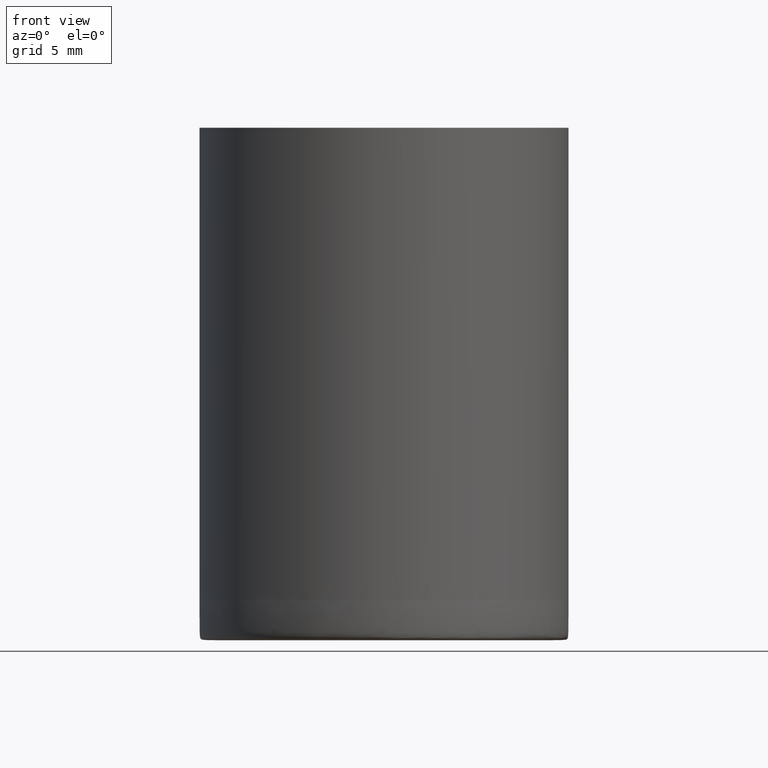
[diagram: clean part render]
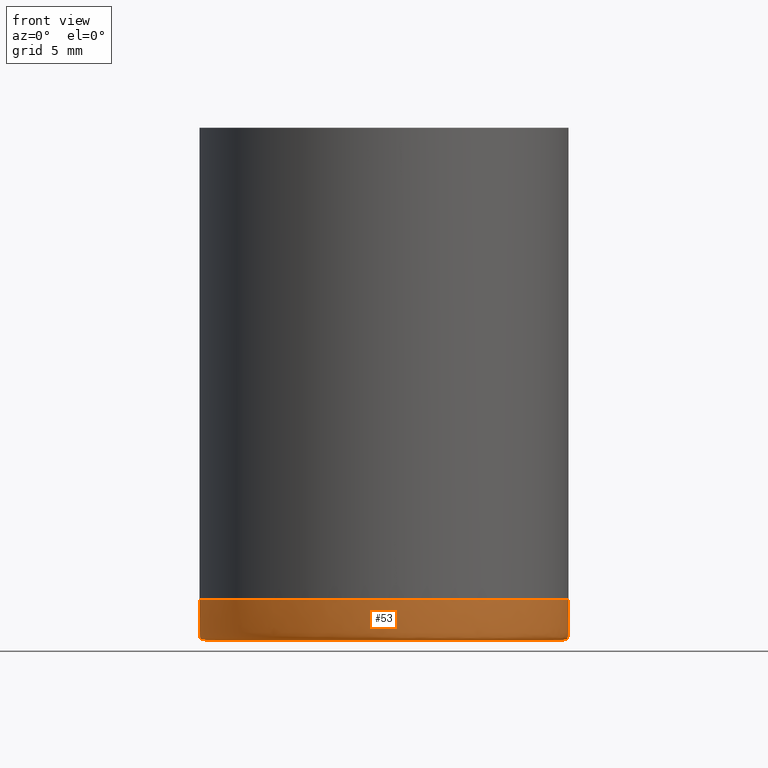
[diagram: same view with one face highlighted and labeled with its STEP entity id]
A machine part, front view. The second image highlights one B-rep face of the part: STEP entity #53.
In plain terms, the highlighted face is a freeform B-spline surface patch.
Its self-contained STEP definition (entity closure, byte-faithful):
#1 = CARTESIAN_POINT ( 'NONE',  ( 2.355730962935730600, 8.765754088481333600, 2.000000000000001800 ) ) ;
#2 = CARTESIAN_POINT ( 'NONE',  ( 8.765754088481321200, 2.355730962935762600, 2.000000000000001800 ) ) ;
#6 = CARTESIAN_POINT ( 'NONE',  ( 4.532570819635861200, -7.864077496722286400, -3.956461275332821500E-013 ) ) ;
#9 = CARTESIAN_POINT ( 'NONE',  ( -2.355730962935641800, 8.765754088481578800, 1.734723475976807300E-015 ) ) ;
#11 = CARTESIAN_POINT ( 'NONE',  ( 7.864077496721888500, -4.532570819635727100, 2.000000000000001800 ) ) ;
#13 = CARTESIAN_POINT ( 'NONE',  ( -0.9162978541803630300, 6.999999999999999100, 1.734723475976807100E-015 ) ) ;
#16 = CARTESIAN_POINT ( 'NONE',  ( -3.525332859716778800, -6.116504719672661000, 1.734723475976807100E-015 ) ) ;
#29 = EDGE_CURVE ( 'NONE', #332, #120, #582, .T. ) ;
#36 = CARTESIAN_POINT ( 'NONE',  ( -9.000000000000000000, 1.103971260012029000E-015, 1.734723475976807300E-015 ) ) ;
#37 = CARTESIAN_POINT ( 'NONE',  ( 6.954909725996230900, -0.9137101841437300600, 0.0000000000000000000 ) ) ;
#40 = CARTESIAN_POINT ( 'NONE',  ( -6.999999999999999100, 8.673617379884035500E-016, 8.673617379884035500E-016 ) ) ;
#41 = CARTESIAN_POINT ( 'NONE',  ( 4.626093170439671300, -5.273456898053740200, -0.0000000000000000000 ) ) ;
#44 = CARTESIAN_POINT ( 'NONE',  ( 1.178097241089039600, 9.000000000000000000, 2.000000000000001800 ) ) ;
#47 = EDGE_LOOP ( 'NONE', ( #305, #206, #569, #600 ) ) ;
#48 = CARTESIAN_POINT ( 'NONE',  ( 9.000000000000000000, 0.0000000000000000000, 1.734723475976807300E-015 ) ) ;
#51 = CARTESIAN_POINT ( 'NONE',  ( -6.291945348562289400, -3.101679843626973000, 0.0000000000000000000 ) ) ;
#53 = ADVANCED_FACE ( 'NONE', ( #517 ), #449, .T. ) ;
#56 = CARTESIAN_POINT ( 'NONE',  ( 5.530920482607561100, -7.197001578749894400, 1.734723475976806900E-015 ) ) ;
#57 = CARTESIAN_POINT ( 'NONE',  ( 6.999999999999999100, 0.0000000000000000000, 8.673617379884035500E-016 ) ) ;
#58 = CARTESIAN_POINT ( 'NONE',  ( 1.178097241089039600, 8.999999999999998200, 1.734723475976807300E-015 ) ) ;
#60 = CARTESIAN_POINT ( 'NONE',  ( -7.864077496720089000, -4.532570819636464200, -3.956461275345179200E-013 ) ) ;
#70 = CARTESIAN_POINT ( 'NONE',  ( 6.817808735485742000, -1.832235193394495600, 1.734723475976807100E-015 ) ) ;
#81 = CARTESIAN_POINT ( 'NONE',  ( 6.075836996854586200, -3.505686863512972500, 0.0000000000000000000 ) ) ;
#82 = CARTESIAN_POINT ( 'NONE',  ( 9.000000000000000000, 5.510910596163088600E-016, 2.000000000000001800 ) ) ;
#87 = CARTESIAN_POINT ( 'NONE',  ( -9.000000000000000000, 1.178097241089039800, 2.000000000000001800 ) ) ;
#88 = CARTESIAN_POINT ( 'NONE',  ( -1.178097245096173100, -9.000000000000000000, 2.000000000000001800 ) ) ;
#89 = CARTESIAN_POINT ( 'NONE',  ( -7.197001578750478000, -5.530920482607379000, 2.000000000000001800 ) ) ;
#90 = CARTESIAN_POINT ( 'NONE',  ( -4.532570823338096100, -7.864077495188321400, 2.000000000000001800 ) ) ;
#94 = CARTESIAN_POINT ( 'NONE',  ( 7.197001578749834000, 5.530920482608019400, 2.000000000000001800 ) ) ;
#95 = CARTESIAN_POINT ( 'NONE',  ( -1.832235193394365500, 6.817808735485495000, 1.734723475976807100E-015 ) ) ;
#98 = CARTESIAN_POINT ( 'NONE',  ( 7.197001578750258600, -5.530920482607994500, 1.734723475976806900E-015 ) ) ;
#102 = CARTESIAN_POINT ( 'NONE',  ( 9.000000000000000000, 0.0000000000000000000, 2.000000000000001800 ) ) ;
#104 = CARTESIAN_POINT ( 'NONE',  ( 6.999999999999999100, 0.9162978541821159600, 1.734723475976807100E-015 ) ) ;
#105 = CARTESIAN_POINT ( 'NONE',  ( -1.178097241089025800, -9.000000000000001800, 2.000000000000001800 ) ) ;
#120 = VERTEX_POINT ( 'NONE', #136 ) ;
#122 = VERTEX_POINT ( 'NONE', #82 ) ;
#128 = CARTESIAN_POINT ( 'NONE',  ( 1.817370587955756200, -6.775160495766284500, 0.0000000000000000000 ) ) ;
#131 = CARTESIAN_POINT ( 'NONE',  ( 4.271773162550204900, -5.563954497036533600, 0.0000000000000000000 ) ) ;
#135 = CARTESIAN_POINT ( 'NONE',  ( 6.642296073321877400, -2.255858372325521900, 0.0000000000000000000 ) ) ;
#136 = CARTESIAN_POINT ( 'NONE',  ( -6.999999999999999100, 8.673617379884035500E-016, 8.673617379884035500E-016 ) ) ;
#137 = CARTESIAN_POINT ( 'NONE',  ( 7.197001581583623200, -5.530920479774233700, 2.000000000000002200 ) ) ;
#138 = CARTESIAN_POINT ( 'NONE',  ( -8.765754088481543200, -2.355730962935216300, 2.000000000000001800 ) ) ;
#140 = CARTESIAN_POINT ( 'NONE',  ( 9.000000000000000000, -1.178097245096174200, 2.000000000000001800 ) ) ;
#142 = CARTESIAN_POINT ( 'NONE',  ( 4.532570819635877200, 7.864077496721830800, 2.000000000000001800 ) ) ;
#144 = CARTESIAN_POINT ( 'NONE',  ( -5.273456898050898900, -4.626093170442176800, -0.0000000000000000000 ) ) ;
#145 = CARTESIAN_POINT ( 'NONE',  ( -1.178097241089038200, 9.000000000000000000, 2.000000000000001800 ) ) ;
#147 = CARTESIAN_POINT ( 'NONE',  ( 8.765754088480871800, -2.355730962935751900, 1.734723475976807300E-015 ) ) ;
#149 = CARTESIAN_POINT ( 'NONE',  ( 6.817808735485234800, 1.832235193394431600, 1.734723475976807100E-015 ) ) ;
#152 = CARTESIAN_POINT ( 'NONE',  ( 4.532570819635577800, 7.864077496722377000, 7.964964254957309400E-013 ) ) ;
#153 = CARTESIAN_POINT ( 'NONE',  ( 8.765754088481260800, -2.355730962935912200, 2.000000000000001800 ) ) ;
#156 = CARTESIAN_POINT ( 'NONE',  ( -7.864077496721667300, 4.532570819636290200, 1.734723475976807300E-015 ) ) ;
#158 = EDGE_CURVE ( 'NONE', #455, #120, #372, .T. ) ;
#173 = CARTESIAN_POINT ( 'NONE',  ( 6.999999999999999100, 0.0000000000000000000, 8.673617379884035500E-016 ) ) ;
#176 = CARTESIAN_POINT ( 'NONE',  ( 0.4577552816897402200, -6.999961015872926900, 0.0000000000000000000 ) ) ;
#180 = CARTESIAN_POINT ( 'NONE',  ( -8.765754090014841200, -2.355730959233521800, 2.000000000000002200 ) ) ;
#182 = CARTESIAN_POINT ( 'NONE',  ( 7.000000000000000900, -0.4579513537572051900, -0.0000000000000000000 ) ) ;
#186 = CARTESIAN_POINT ( 'NONE',  ( 9.000000000000000000, 1.178097241091291800, 2.000000000000001800 ) ) ;
#192 = CARTESIAN_POINT ( 'NONE',  ( -8.765754088481420700, 2.355730962935523200, 2.000000000000001800 ) ) ;
#196 = CARTESIAN_POINT ( 'NONE',  ( -9.000000000000000000, 5.421010862427522200E-016, 2.000000000000001800 ) ) ;
#199 = CARTESIAN_POINT ( 'NONE',  ( 8.999999999999998200, 0.0000000000000000000, 1.734723475976807300E-015 ) ) ;
#201 = CARTESIAN_POINT ( 'NONE',  ( 5.597667894583292300, 4.301827042028371300, 1.734723475976807100E-015 ) ) ;
#202 = CARTESIAN_POINT ( 'NONE',  ( -4.532570819635886000, -7.864077496722276600, 1.734723475976807300E-015 ) ) ;
#204 = CARTESIAN_POINT ( 'NONE',  ( 6.116504719672263900, -3.525332859716779700, 1.734723475976807100E-015 ) ) ;
#206 = ORIENTED_EDGE ( 'NONE', *, *, #158, .T. ) ;
#210 = CARTESIAN_POINT ( 'NONE',  ( -6.999999999999999100, 0.9162978541803642500, 1.734723475976807100E-015 ) ) ;
#225 = CARTESIAN_POINT ( 'NONE',  ( -0.4577552816897177400, -7.000038984127072300, -0.0000000000000000000 ) ) ;
#230 = CARTESIAN_POINT ( 'NONE',  ( 5.273401766171966500, -4.626038038557955400, 0.0000000000000000000 ) ) ;
#232 = CARTESIAN_POINT ( 'NONE',  ( 9.000000000000000000, 5.510910596163088600E-016, 2.000000000000001800 ) ) ;
#233 = CARTESIAN_POINT ( 'NONE',  ( -2.355730959233523200, -8.765754090014834100, 2.000000000000001300 ) ) ;
#238 = CARTESIAN_POINT ( 'NONE',  ( -6.075901012624056500, -3.505729637479546600, -0.0000000000000000000 ) ) ;
#244 = CARTESIAN_POINT ( 'NONE',  ( -5.530920482607776900, 7.197001578750081000, 2.000000000000001800 ) ) ;
#245 = CARTESIAN_POINT ( 'NONE',  ( 8.765754088480962400, 2.355730962935613300, 1.734723475976806900E-015 ) ) ;
#247 = CARTESIAN_POINT ( 'NONE',  ( 5.530920482608021200, 7.197001578749834000, 1.734723475976807300E-015 ) ) ;
#249 = CARTESIAN_POINT ( 'NONE',  ( -8.765754088481482900, 2.355730962935348200, 1.734723475976807300E-015 ) ) ;
#250 = CARTESIAN_POINT ( 'NONE',  ( 3.525332859716890700, 6.116504719672518900, 1.734723475976807100E-015 ) ) ;
#251 = CARTESIAN_POINT ( 'NONE',  ( 2.355730962936054300, -8.765754088481196900, 2.000000000000001800 ) ) ;
#255 = CARTESIAN_POINT ( 'NONE',  ( 0.9162978541803755700, -6.999999999999999100, 1.734723475976807100E-015 ) ) ;
#257 = CARTESIAN_POINT ( 'NONE',  ( -1.832235193394495100, -6.817808735485344100, 1.734723475976807100E-015 ) ) ;
#267 = B_SPLINE_CURVE_WITH_KNOTS ( 'NONE', 3,
 ( #412, #529, #180, #468, #527, #562, #90, #233, #88, #568, #410, #283, #611, #137, #608, #417, #140, #327 ),
 .UNSPECIFIED., .F., .F.,
 ( 4, 2, 2, 2, 2, 2, 2, 2, 4 ),
 ( 0.5000000000000000000, 0.5625000000000000000, 0.6249999999999998900, 0.6874999999999998900, 0.7499999999999998900, 0.8124999999999998900, 0.8749999999999998900, 0.9375000000000000000, 1.000000000000000000 ),
 .UNSPECIFIED. ) ;
#268 = CARTESIAN_POINT ( 'NONE',  ( -9.000000000000000000, 5.421010862427522200E-016, 2.000000000000001800 ) ) ;
#274 = CARTESIAN_POINT ( 'NONE',  ( 6.775236007512823700, -1.817385608177638700, -0.0000000000000000000 ) ) ;
#280 = CARTESIAN_POINT ( 'NONE',  ( 9.000000000000000000, 0.0000000000000000000, 2.000000000000001800 ) ) ;
#282 = CARTESIAN_POINT ( 'NONE',  ( -4.532570819636053000, 7.864077496721756200, 2.000000000000001800 ) ) ;
#283 = CARTESIAN_POINT ( 'NONE',  ( 4.532570823338094400, -7.864077495188321400, 2.000000000000001800 ) ) ;
#284 = CARTESIAN_POINT ( 'NONE',  ( -6.642368106595730700, -2.255888209484264700, -0.0000000000000000000 ) ) ;
#287 = CARTESIAN_POINT ( 'NONE',  ( -8.765754088483079800, -2.355730962935127100, 3.991155744864715300E-013 ) ) ;
#289 = CARTESIAN_POINT ( 'NONE',  ( -4.532570819635982900, 7.864077496721582100, 1.734723475976807300E-015 ) ) ;
#290 = CARTESIAN_POINT ( 'NONE',  ( 2.355730962936031200, 8.765754088480790100, -7.930269785437773300E-013 ) ) ;
#292 = CARTESIAN_POINT ( 'NONE',  ( 8.999999999999998200, 0.0000000000000000000, 1.734723475976807300E-015 ) ) ;
#294 = CARTESIAN_POINT ( 'NONE',  ( 0.9162978541803639100, 6.999999999999999100, 1.734723475976807100E-015 ) ) ;
#295 = CARTESIAN_POINT ( 'NONE',  ( -4.301827042027866800, -5.597667894583798500, 1.734723475976807100E-015 ) ) ;
#296 = CARTESIAN_POINT ( 'NONE',  ( -0.9162978541803532600, -6.999999999999999100, 1.734723475976807100E-015 ) ) ;
#303 = CARTESIAN_POINT ( 'NONE',  ( 5.597667894583356200, -4.301827042028308200, 1.734723475976807100E-015 ) ) ;
#305 = ORIENTED_EDGE ( 'NONE', *, *, #349, .F. ) ;
#312 = CARTESIAN_POINT ( 'NONE',  ( 6.292017381836125800, -3.101709680785753600, -0.0000000000000000000 ) ) ;
#324 = CARTESIAN_POINT ( 'NONE',  ( -7.864077496721726800, 4.532570819636115200, 2.000000000000001800 ) ) ;
#326 = CARTESIAN_POINT ( 'NONE',  ( -2.255858372327477700, -6.642296073320660600, 0.0000000000000000000 ) ) ;
#327 = CARTESIAN_POINT ( 'NONE',  ( 9.000000000000000000, 5.510910596163088600E-016, 2.000000000000001800 ) ) ;
#332 = VERTEX_POINT ( 'NONE', #419 ) ;
#333 = CARTESIAN_POINT ( 'NONE',  ( 5.530920482608021200, 7.197001578749832300, 2.000000000000001800 ) ) ;
#334 = CARTESIAN_POINT ( 'NONE',  ( 2.355730962935725700, -8.765754088480882400, 3.991155744852366200E-013 ) ) ;
#336 = CARTESIAN_POINT ( 'NONE',  ( 7.864077496722201100, 4.532570819636004200, 1.734723475976806900E-015 ) ) ;
#338 = CARTESIAN_POINT ( 'NONE',  ( -2.355730962935751500, -8.765754088480871800, 1.734723475976807300E-015 ) ) ;
#341 = CARTESIAN_POINT ( 'NONE',  ( -1.178097241089026200, -8.999999999999998200, 1.734723475976806900E-015 ) ) ;
#342 = CARTESIAN_POINT ( 'NONE',  ( -8.999999999999998200, 1.178097241089039800, 1.734723475976807300E-015 ) ) ;
#349 = EDGE_CURVE ( 'NONE', #455, #122, #267, .T. ) ;
#368 = CARTESIAN_POINT ( 'NONE',  ( 3.505729637473928900, -6.075901012626725400, -0.0000000000000000000 ) ) ;
#372 =( BOUNDED_CURVE ( )  B_SPLINE_CURVE ( 2, ( #268, #36, #40 ),
 .UNSPECIFIED., .F., .F. ) 
 B_SPLINE_CURVE_WITH_KNOTS ( ( 3, 3 ),
 ( 0.0000000000000000000, 1.000000000000000000 ),
 .UNSPECIFIED. ) 
 CURVE ( )  GEOMETRIC_REPRESENTATION_ITEM ( )  RATIONAL_B_SPLINE_CURVE ( ( 1.000000000000000000, 14.14213562373095100, 1.000000000000000000 ) ) 
 REPRESENTATION_ITEM ( '' )  );
#375 = CARTESIAN_POINT ( 'NONE',  ( -6.999961015872928600, -0.4577552816867001000, -0.0000000000000000000 ) ) ;
#377 = CARTESIAN_POINT ( 'NONE',  ( 4.301827042028372200, 5.597667894583291400, 1.734723475976807100E-015 ) ) ;
#379 = CARTESIAN_POINT ( 'NONE',  ( 8.999999999999998200, 1.178097241091292000, 1.734723475976807300E-015 ) ) ;
#381 = CARTESIAN_POINT ( 'NONE',  ( 1.178097241089054200, -8.999999999999998200, 1.734723475976806900E-015 ) ) ;
#384 = CARTESIAN_POINT ( 'NONE',  ( 7.864077496722276600, -4.532570819635886900, 1.734723475976807300E-015 ) ) ;
#392 = CARTESIAN_POINT ( 'NONE',  ( 3.525332859716758800, -6.116504719672669000, 1.734723475976807100E-015 ) ) ;
#402 = CARTESIAN_POINT ( 'NONE',  ( 3.101679843628292400, -6.291945348562080700, 0.0000000000000000000 ) ) ;
#405 = CARTESIAN_POINT ( 'NONE',  ( 2.255888209482943600, -6.642368106595939500, -0.0000000000000000000 ) ) ;
#410 = CARTESIAN_POINT ( 'NONE',  ( 2.355730959233521800, -8.765754090014839400, 2.000000000000001800 ) ) ;
#412 = CARTESIAN_POINT ( 'NONE',  ( -9.000000000000000000, 5.421010862427522200E-016, 2.000000000000001800 ) ) ;
#413 = CARTESIAN_POINT ( 'NONE',  ( -9.000000000000000000, -1.178097241089037600, 2.000000000000001800 ) ) ;
#415 = CARTESIAN_POINT ( 'NONE',  ( -5.530920482607371000, -7.197001578750484200, 2.000000000000001800 ) ) ;
#417 = CARTESIAN_POINT ( 'NONE',  ( 8.765754090014835900, -2.355730959233524900, 2.000000000000001300 ) ) ;
#419 = CARTESIAN_POINT ( 'NONE',  ( 6.999999999999999100, 0.0000000000000000000, 8.673617379884035500E-016 ) ) ;
#420 = CARTESIAN_POINT ( 'NONE',  ( -6.954985237742518800, -0.9137252043647169400, -0.0000000000000000000 ) ) ;
#424 = CARTESIAN_POINT ( 'NONE',  ( -3.101709680783797400, -6.292017381837343500, -0.0000000000000000000 ) ) ;
#426 = CARTESIAN_POINT ( 'NONE',  ( -3.525332859716895600, 6.116504719672516200, 1.734723475976807100E-015 ) ) ;
#428 = CARTESIAN_POINT ( 'NONE',  ( 6.999999999999999100, 0.0000000000000000000, 1.734723475976807100E-015 ) ) ;
#429 = CARTESIAN_POINT ( 'NONE',  ( 1.178097241089054400, -8.999999999999998200, 2.000000000000001800 ) ) ;
#433 = CARTESIAN_POINT ( 'NONE',  ( -7.197001578750088100, 5.530920482607769800, 1.734723475976806900E-015 ) ) ;
#435 = CARTESIAN_POINT ( 'NONE',  ( -1.178097241089038200, 8.999999999999998200, 1.734723475976807300E-015 ) ) ;
#437 = CARTESIAN_POINT ( 'NONE',  ( -5.597667894583401500, 4.301827042028262900, 1.734723475976807100E-015 ) ) ;
#442 = CARTESIAN_POINT ( 'NONE',  ( -5.597667894583792300, -4.301827042027873000, 1.734723475976807100E-015 ) ) ;
#448 = EDGE_CURVE ( 'NONE', #122, #332, #541, .T. ) ;
#449 =( BOUNDED_SURFACE ( )  B_SPLINE_SURFACE ( 2, 3, ( 
 ( #280, #186, #2, #528, #94, #333, #142, #1, #44, #145, #567, #282, #244, #612, #324, #192, #87, #413, #138, #469, #89, #415, #471, #525, #105, #429, #251, #488, #540, #575, #11, #153, #489, #102 ),
 ( #199, #379, #245, #336, #535, #247, #152, #290, #58, #435, #9, #289, #536, #433, #156, #249, #342, #537, #287, #60, #490, #534, #202, #338, #341, #381, #334, #6, #56, #98, #384, #147, #578, #292 ),
 ( #428, #104, #149, #486, #201, #377, #250, #580, #294, #13, #95, #426, #482, #437, #498, #547, #210, #504, #495, #550, #442, #295, #16, #257, #296, #255, #549, #392, #584, #303, #204, #70, #585, #542 ) ),
 .UNSPECIFIED., .F., .T., .T. ) 
 B_SPLINE_SURFACE_WITH_KNOTS ( ( 3, 3 ),
 ( 4, 2, 2, 2, 2, 2, 2, 2, 2, 2, 2, 2, 2, 2, 2, 2, 4 ),
 ( 0.0000000000000000000, 1.000000000000000000 ),
 ( 0.0000000000000000000, 0.3926990816987241400, 0.7853981633974482800, 1.178097245096172400, 1.570796326794896600, 1.963495408493620700, 2.356194490192344800, 2.748893571891069000, 3.141592653589793100, 3.534291735288517300, 3.926990816987241400, 4.319689898685965100, 4.712388980384689700, 5.105088062083414300, 5.497787143782138000, 5.890486225480861600, 6.283185307179586200 ),
 .UNSPECIFIED. ) 
 GEOMETRIC_REPRESENTATION_ITEM ( )  RATIONAL_B_SPLINE_SURFACE ( (
 ( 1.000000000000000000, 1.000000000000000000, 1.000000000000000000, 1.000000000000000000, 1.000000000000000000, 1.000000000000000000, 1.000000000000000000, 1.000000000000000000, 1.000000000000000000, 1.000000000000000000, 1.000000000000000000, 1.000000000000000000, 1.000000000000000000, 1.000000000000000000, 1.000000000000000000, 1.000000000000000000, 1.000000000000000000, 1.000000000000000000, 1.000000000000000000, 1.000000000000000000, 1.000000000000000000, 1.000000000000000000, 1.000000000000000000, 1.000000000000000000, 1.000000000000000000, 1.000000000000000000, 1.000000000000000000, 1.000000000000000000, 1.000000000000000000, 1.000000000000000000, 1.000000000000000000, 1.000000000000000000, 1.000000000000000000, 1.000000000000000000),
 ( 14.14213562373095100, 14.14213562373095100, 14.14213562373095500, 14.14213562373095500, 14.14213562373095100, 14.14213562373095100, 14.14213562373095500, 14.14213562373095500, 14.14213562373095100, 14.14213562373095100, 14.14213562373094900, 14.14213562373094900, 14.14213562373095500, 14.14213562373095500, 14.14213562373094900, 14.14213562373094900, 14.14213562373095100, 14.14213562373095100, 14.14213562373094600, 14.14213562373094600, 14.14213562373095100, 14.14213562373095100, 14.14213562373094900, 14.14213562373094900, 14.14213562373095500, 14.14213562373095500, 14.14213562373095100, 14.14213562373095100, 14.14213562373095500, 14.14213562373095500, 14.14213562373094900, 14.14213562373094900, 14.14213562373095100, 14.14213562373095100),
 ( 1.000000000000000000, 1.000000000000000000, 1.000000000000000000, 1.000000000000000000, 1.000000000000000000, 1.000000000000000000, 1.000000000000000000, 1.000000000000000000, 1.000000000000000000, 1.000000000000000000, 1.000000000000000000, 1.000000000000000000, 1.000000000000000000, 1.000000000000000000, 1.000000000000000000, 1.000000000000000000, 1.000000000000000000, 1.000000000000000000, 1.000000000000000000, 1.000000000000000000, 1.000000000000000000, 1.000000000000000000, 1.000000000000000000, 1.000000000000000000, 1.000000000000000000, 1.000000000000000000, 1.000000000000000000, 1.000000000000000000, 1.000000000000000000, 1.000000000000000000, 1.000000000000000000, 1.000000000000000000, 1.000000000000000000, 1.000000000000000000) ) ) 
 REPRESENTATION_ITEM ( '' )  SURFACE ( )  );
#455 = VERTEX_POINT ( 'NONE', #196 ) ;
#460 = CARTESIAN_POINT ( 'NONE',  ( 0.9137252043642896100, -6.954985237742483200, -0.0000000000000000000 ) ) ;
#468 = CARTESIAN_POINT ( 'NONE',  ( -7.864077495188323200, -4.532570823338094400, 2.000000000000002200 ) ) ;
#469 = CARTESIAN_POINT ( 'NONE',  ( -7.864077496721624700, -4.532570819636373600, 2.000000000000001800 ) ) ;
#471 = CARTESIAN_POINT ( 'NONE',  ( -4.532570819635557400, -7.864077496721959500, 2.000000000000001800 ) ) ;
#475 = CARTESIAN_POINT ( 'NONE',  ( -4.626038038560762000, -5.273401766169496500, 0.0000000000000000000 ) ) ;
#480 = CARTESIAN_POINT ( 'NONE',  ( -5.563954497039279800, -4.271773162544325200, 0.0000000000000000000 ) ) ;
#482 = CARTESIAN_POINT ( 'NONE',  ( -4.301827042028270000, 5.597667894583395300, 1.734723475976807100E-015 ) ) ;
#486 = CARTESIAN_POINT ( 'NONE',  ( 6.116504719672778200, 3.525332859716825400, 1.734723475976807100E-015 ) ) ;
#488 = CARTESIAN_POINT ( 'NONE',  ( 4.532570819635531700, -7.864077496721972900, 2.000000000000001800 ) ) ;
#489 = CARTESIAN_POINT ( 'NONE',  ( 9.000000000000000000, -1.178097241091293100, 2.000000000000001800 ) ) ;
#490 = CARTESIAN_POINT ( 'NONE',  ( -7.197001578750476200, -5.530920482607379000, 1.734723475976807300E-015 ) ) ;
#495 = CARTESIAN_POINT ( 'NONE',  ( -6.817808735485646900, -1.832235193394427900, 1.734723475976807100E-015 ) ) ;
#498 = CARTESIAN_POINT ( 'NONE',  ( -6.116504719672365200, 3.525332859717026100, 1.734723475976807100E-015 ) ) ;
#504 = CARTESIAN_POINT ( 'NONE',  ( -6.999999999999999100, -0.9162978541803625800, 1.734723475976807100E-015 ) ) ;
#517 = FACE_OUTER_BOUND ( 'NONE', #47, .T. ) ;
#519 = CARTESIAN_POINT ( 'NONE',  ( 5.564018512808338800, -4.271815936511211800, -0.0000000000000000000 ) ) ;
#525 = CARTESIAN_POINT ( 'NONE',  ( -2.355730962936081400, -8.765754088481189800, 2.000000000000001800 ) ) ;
#527 = CARTESIAN_POINT ( 'NONE',  ( -7.197001581583623200, -5.530920479774233700, 2.000000000000002200 ) ) ;
#528 = CARTESIAN_POINT ( 'NONE',  ( 7.864077496721839600, 4.532570819635854100, 2.000000000000001800 ) ) ;
#529 = CARTESIAN_POINT ( 'NONE',  ( -9.000000000000001800, -1.178097245096172600, 2.000000000000001800 ) ) ;
#530 = CARTESIAN_POINT ( 'NONE',  ( -1.817385608177813700, -6.775236007512203800, -0.0000000000000000000 ) ) ;
#534 = CARTESIAN_POINT ( 'NONE',  ( -5.530920482607371000, -7.197001578750484200, 1.734723475976807300E-015 ) ) ;
#535 = CARTESIAN_POINT ( 'NONE',  ( 7.197001578749834000, 5.530920482608020300, 1.734723475976807300E-015 ) ) ;
#536 = CARTESIAN_POINT ( 'NONE',  ( -5.530920482607778700, 7.197001578750079200, 1.734723475976806900E-015 ) ) ;
#537 = CARTESIAN_POINT ( 'NONE',  ( -8.999999999999998200, -1.178097241089037600, 1.734723475976807300E-015 ) ) ;
#540 = CARTESIAN_POINT ( 'NONE',  ( 5.530920482607757400, -7.197001578750090700, 2.000000000000001800 ) ) ;
#541 =( BOUNDED_CURVE ( )  B_SPLINE_CURVE ( 2, ( #232, #48, #57 ),
 .UNSPECIFIED., .F., .T. ) 
 B_SPLINE_CURVE_WITH_KNOTS ( ( 3, 3 ),
 ( 0.0000000000000000000, 1.000000000000000000 ),
 .UNSPECIFIED. ) 
 CURVE ( )  GEOMETRIC_REPRESENTATION_ITEM ( )  RATIONAL_B_SPLINE_CURVE ( ( 1.000000000000000000, 14.14213562373095100, 1.000000000000000000 ) ) 
 REPRESENTATION_ITEM ( '' )  );
#542 = CARTESIAN_POINT ( 'NONE',  ( 6.999999999999999100, 0.0000000000000000000, 1.734723475976807100E-015 ) ) ;
#547 = CARTESIAN_POINT ( 'NONE',  ( -6.817808735485638900, 1.832235193394248700, 1.734723475976807100E-015 ) ) ;
#549 = CARTESIAN_POINT ( 'NONE',  ( 1.832235193394475200, -6.817808735485352000, 1.734723475976807100E-015 ) ) ;
#550 = CARTESIAN_POINT ( 'NONE',  ( -6.116504719672373200, -3.525332859716809000, 1.734723475976807100E-015 ) ) ;
#559 = CARTESIAN_POINT ( 'NONE',  ( -0.9137101841422297100, -6.954909725996553300, 0.0000000000000000000 ) ) ;
#562 = CARTESIAN_POINT ( 'NONE',  ( -5.530920479774233700, -7.197001581583620600, 2.000000000000001300 ) ) ;
#564 = CARTESIAN_POINT ( 'NONE',  ( -6.999999999999999100, 8.673617379884035500E-016, 8.673617379884035500E-016 ) ) ;
#565 = CARTESIAN_POINT ( 'NONE',  ( -3.505686863512764700, -6.075836996854702600, 0.0000000000000000000 ) ) ;
#567 = CARTESIAN_POINT ( 'NONE',  ( -2.355730962935568100, 8.765754088481401100, 2.000000000000001800 ) ) ;
#568 = CARTESIAN_POINT ( 'NONE',  ( 1.178097245096170900, -8.999999999999998200, 2.000000000000001300 ) ) ;
#569 = ORIENTED_EDGE ( 'NONE', *, *, #29, .F. ) ;
#575 = CARTESIAN_POINT ( 'NONE',  ( 7.197001578750059600, -5.530920482607799100, 2.000000000000001800 ) ) ;
#578 = CARTESIAN_POINT ( 'NONE',  ( 8.999999999999998200, -1.178097241091293100, 1.734723475976807300E-015 ) ) ;
#580 = CARTESIAN_POINT ( 'NONE',  ( 1.832235193394360100, 6.817808735485497700, 1.734723475976807100E-015 ) ) ;
#582 = B_SPLINE_CURVE_WITH_KNOTS ( 'NONE', 3,
 ( #173, #182, #37, #274, #135, #312, #81, #519, #230, #41, #131, #368, #402, #405, #128, #460, #176, #225, #559, #530, #326, #424, #565, #610, #475, #144, #480, #238, #51, #284, #609, #420, #375, #564 ),
 .UNSPECIFIED., .F., .F.,
 ( 4, 2, 2, 2, 2, 2, 2, 2, 2, 2, 2, 2, 2, 2, 2, 2, 4 ),
 ( 0.0000000000000000000, 0.03124999999999994400, 0.06249999999999988900, 0.09374999999999983300, 0.1249999999999998100, 0.1562499999999997800, 0.1874999999999997800, 0.2187499999999997800, 0.2499999999999997800, 0.2812499999999997800, 0.3124999999999997800, 0.3437499999999997800, 0.3749999999999997800, 0.4062499999999998300, 0.4374999999999998900, 0.4687499999999999400, 0.5000000000000000000 ),
 .UNSPECIFIED. ) ;
#584 = CARTESIAN_POINT ( 'NONE',  ( 4.301827042028279800, -5.597667894583384700, 1.734723475976807100E-015 ) ) ;
#585 = CARTESIAN_POINT ( 'NONE',  ( 6.999999999999999100, -0.9162978541821169600, 1.734723475976807100E-015 ) ) ;
#600 = ORIENTED_EDGE ( 'NONE', *, *, #448, .F. ) ;
#608 = CARTESIAN_POINT ( 'NONE',  ( 7.864077495188316100, -4.532570823338099700, 2.000000000000001800 ) ) ;
#609 = CARTESIAN_POINT ( 'NONE',  ( -6.775160495766465700, -1.817370587955283300, 0.0000000000000000000 ) ) ;
#610 = CARTESIAN_POINT ( 'NONE',  ( -4.271815936511083000, -5.564018512808854000, -0.0000000000000000000 ) ) ;
#611 = CARTESIAN_POINT ( 'NONE',  ( 5.530920479774233700, -7.197001581583622400, 2.000000000000001800 ) ) ;
#612 = CARTESIAN_POINT ( 'NONE',  ( -7.197001578750087200, 5.530920482607766300, 2.000000000000001800 ) ) ;